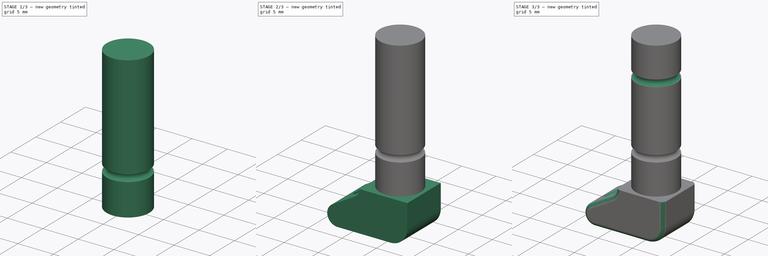
[diagram: build sequence overview — one tinted view per stage of 3, left to right]
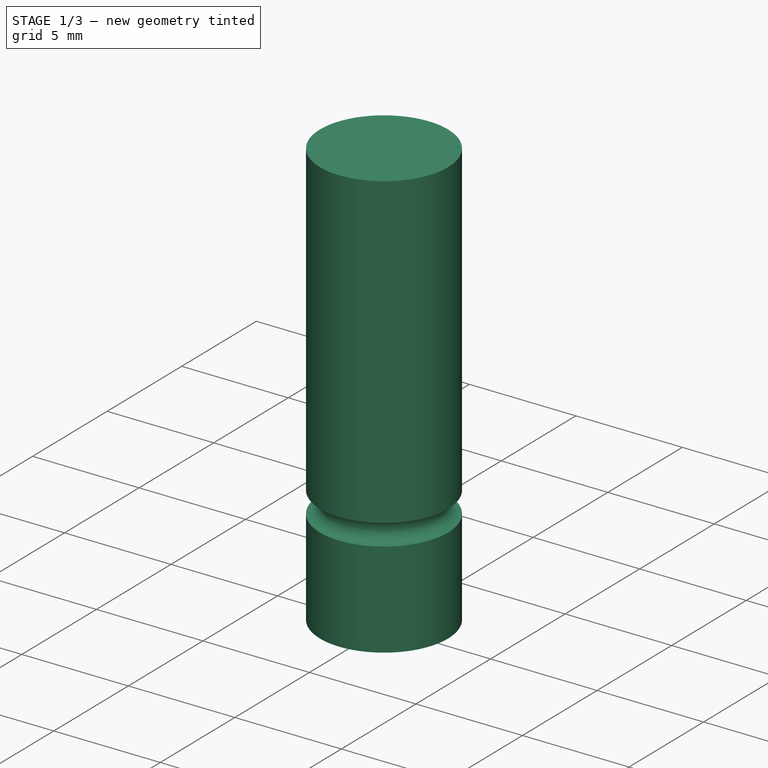
[diagram: stage 1 of 3 — iso view after this stage's code; geometry added in this stage tinted green]
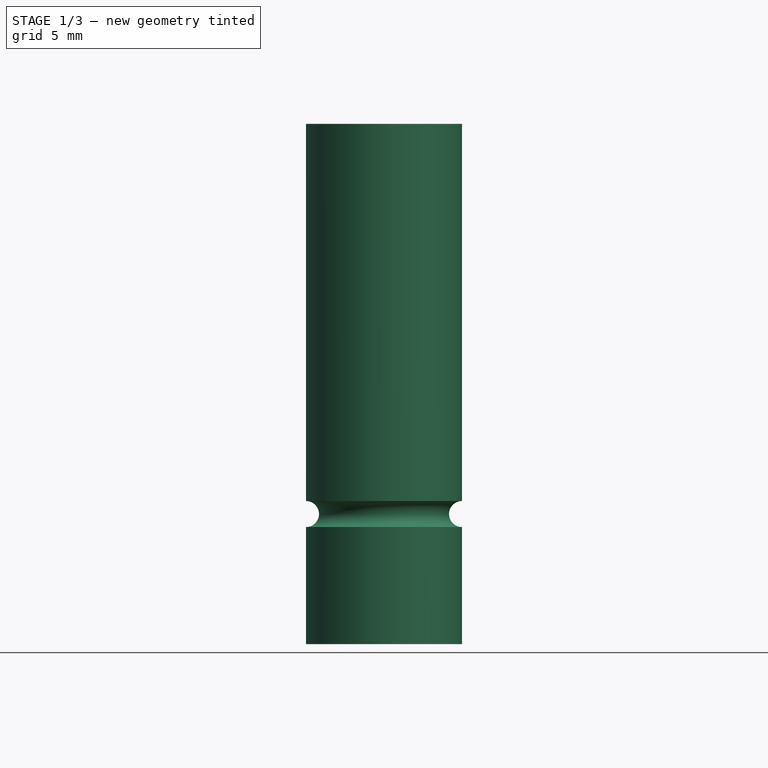
[diagram: stage 1 of 3 — front view after this stage's code; geometry added in this stage tinted green]
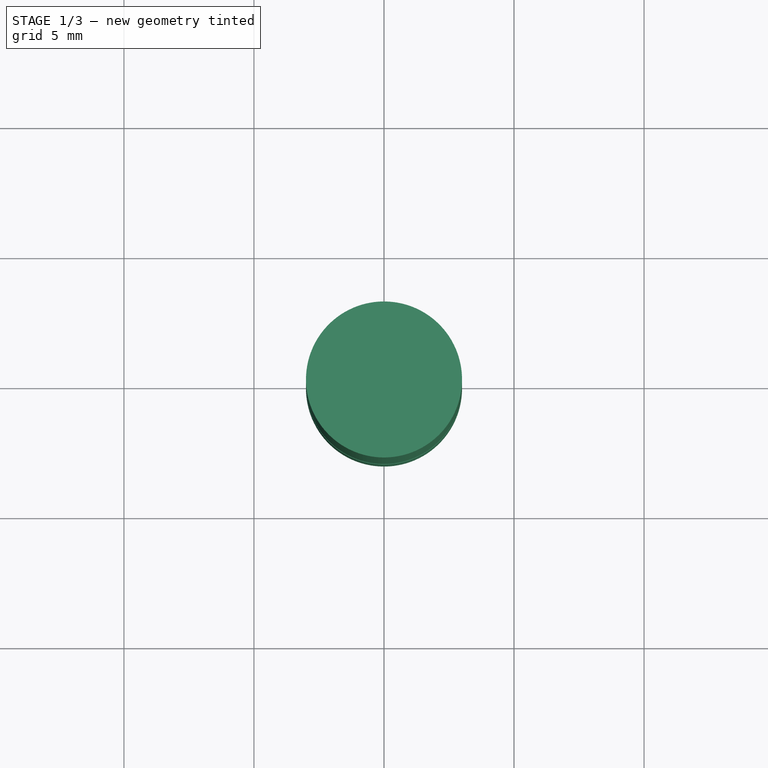
[diagram: stage 1 of 3 — top view after this stage's code; geometry added in this stage tinted green]
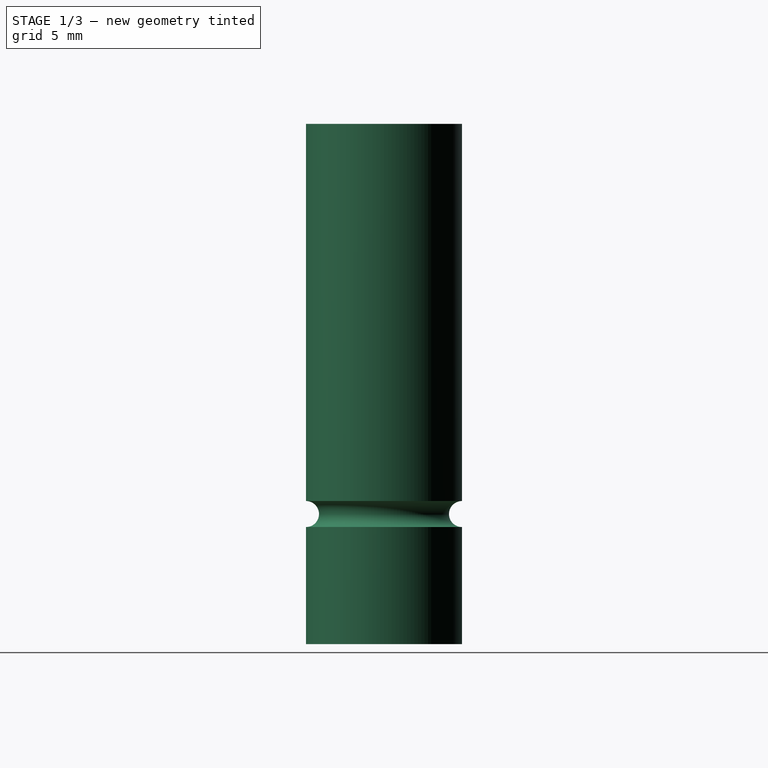
[diagram: stage 1 of 3 — right view after this stage's code; geometry added in this stage tinted green]
FCSTD DOCUMENT  (FreeCAD 0.20R29177 (Git))
Label: SidFishingPoleTip
License: All rights reserved
LicenseURL: http://en.wikipedia.org/wiki/All_rights_reserved
objects: Sketcher::SketchObject×5, PartDesign::Pad×2, PartDesign::Groove×2, Spreadsheet::Sheet×1, PartDesign::Pocket×1, PartDesign::Fillet×1, PartDesign::Body×1
note: 18 computed .brp shape members not serialized (recipe doc carries the construction recipe); baked Part::Feature solids carry a one-line shape summary decoded from their .brp

FEATURE [Sketcher::SketchObject] Sketch
  FullyConstrained = true
  MapMode = 5
  Support = -> [XY_Plane]
  expr: Constraints[1] = Spreadsheet.pole_hole_diameter
  sketch-geometry (1):
    g0: Circle CenterX=0 CenterY=0 CenterZ=0 NormalX=0 NormalY=0 NormalZ=1 AngleXU=0 Radius=3
  constraints (2):
    c: Coincident(g0,g-1)
    c: Diameter(g0) = 6
FEATURE [PartDesign::Pad] Pad
  Direction = (0,0,1)
  Length = 20
  Length2 = 10
  Profile = -> Sketch
  ReferenceAxis = -> Sketch [N_Axis]
  Type = 0
FEATURE [Sketcher::SketchObject] Sketch001
  FullyConstrained = true
  MapMode = 5
  Placement = pos=(0,0,0) rot=(1,0,0;1.5708rad)
  Support = -> [XZ_Plane]
  expr: Constraints[0] = Spreadsheet.pole_hole_diameter / 2
  expr: Constraints[1] = Spreadsheet.o_ring_diameter
  sketch-geometry (1):
    g0: Circle CenterX=3 CenterY=5 CenterZ=0 NormalX=0 NormalY=0 NormalZ=1 AngleXU=0 Radius=0.5
  constraints (3):
    c: DistanceX(g-1,g0) = 3
    c: Diameter(g0) = 1
    c: DistanceY(g-1,g0) = 5
FEATURE [Spreadsheet::Sheet] Spreadsheet
  cells = B4=pole hole diameter; C4(pole_hole_diameter)=6; B5=o ring size; C5(o_ring_diameter)=1
FEATURE [PartDesign::Groove] Groove
  Angle = 360
  Axis = (0,-2e-16,1)
  Base = (0,0,0)
  BaseFeature = -> Pad
  Profile = -> Sketch001
  ReferenceAxis = -> Sketch001 [V_Axis]
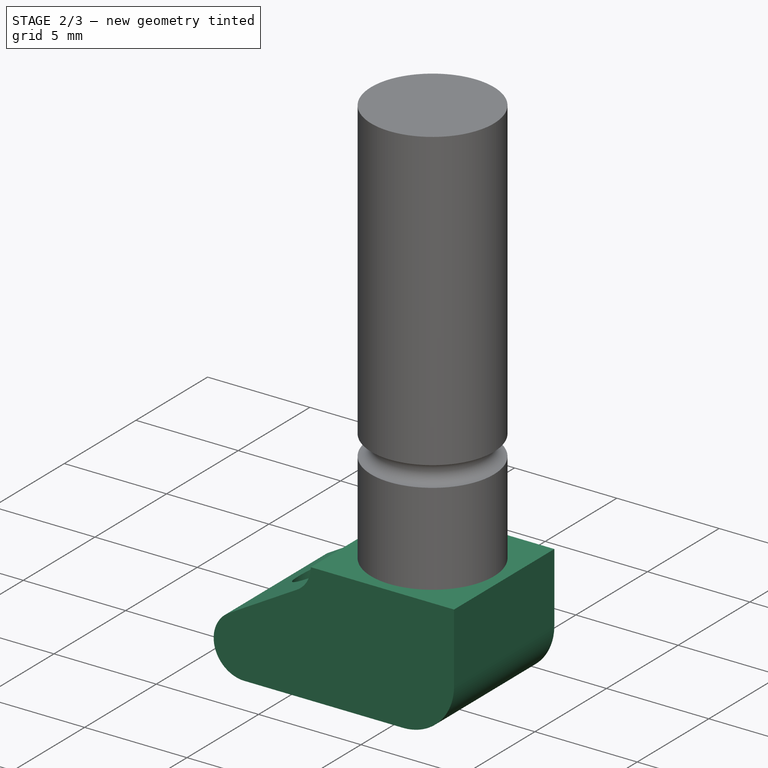
[diagram: stage 2 of 3 — iso view after this stage's code; geometry added in this stage tinted green]
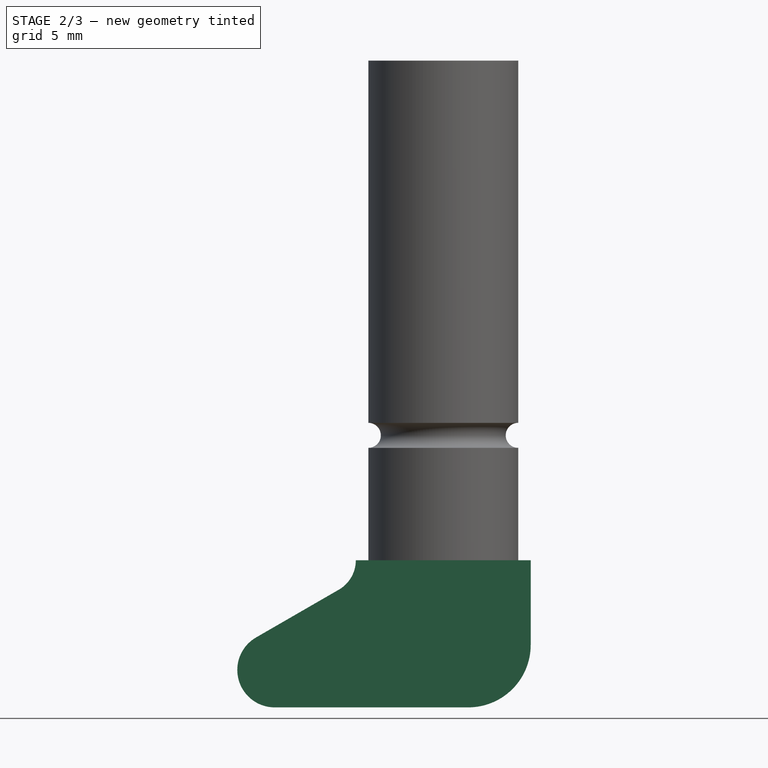
[diagram: stage 2 of 3 — front view after this stage's code; geometry added in this stage tinted green]
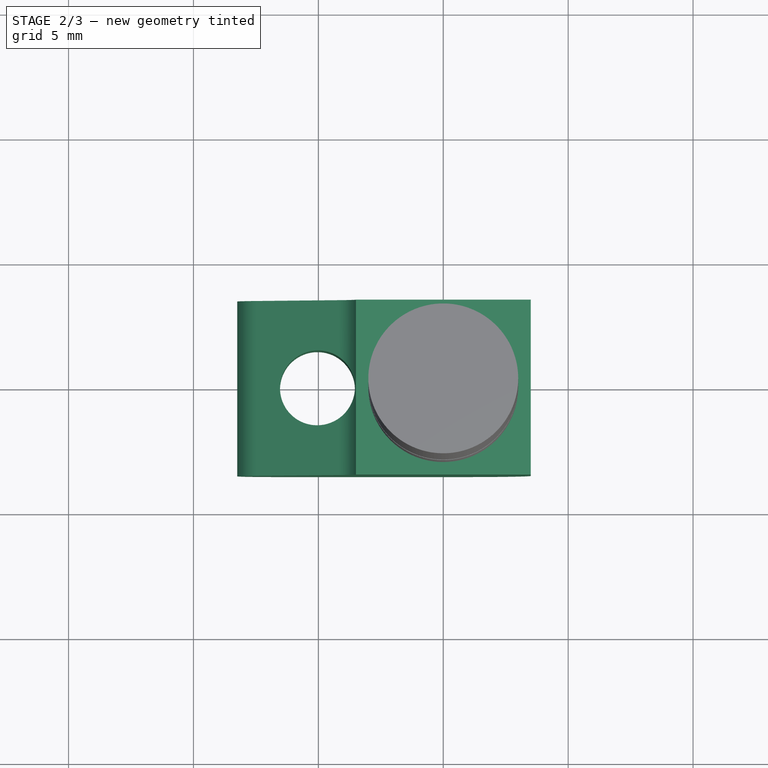
[diagram: stage 2 of 3 — top view after this stage's code; geometry added in this stage tinted green]
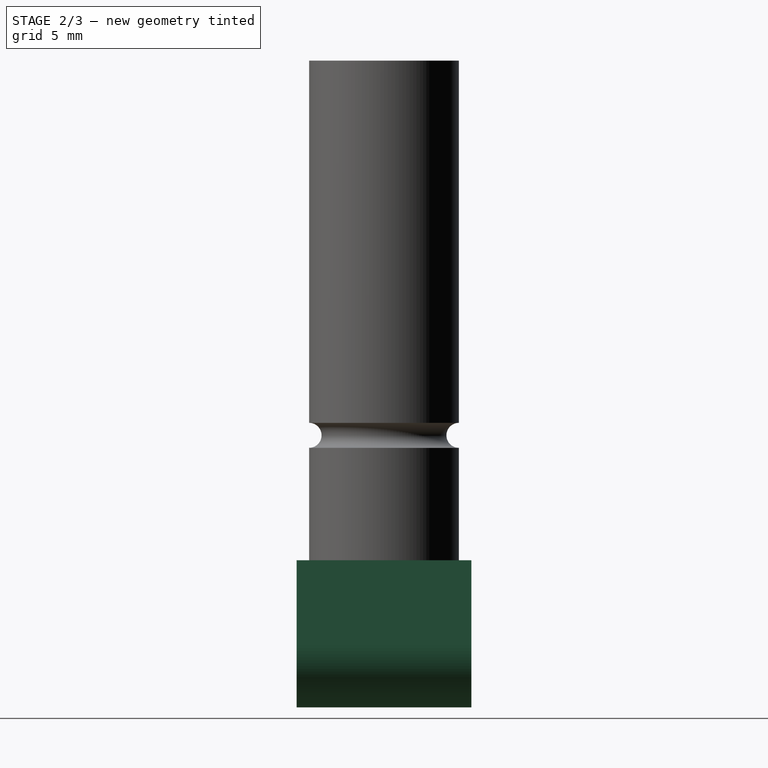
[diagram: stage 2 of 3 — right view after this stage's code; geometry added in this stage tinted green]
FEATURE [Sketcher::SketchObject] Sketch002
  FullyConstrained = false
  MapMode = 5
  Placement = pos=(0,0,0) rot=(1,0,0;1.5708rad)
  Support = -> [XZ_Plane]
  expr: .Constraints.head_size = Spreadsheet.pole_hole_diameter + 1
  expr: Constraints[11] = (Spreadsheet.pole_hole_diameter + 1) / 2
  sketch-geometry (7):
    g0: LineSegment StartX=3.5 StartY=0 StartZ=0 EndX=3.5 EndY=-3.39068 EndZ=0
    g1: ArcOfCircle CenterX=1 CenterY=-3.39068 CenterZ=0 NormalX=0 NormalY=0 NormalZ=1 AngleXU=0 Radius=2.5 StartAngle=4.71239 EndAngle=6.28319
    g2: LineSegment StartX=1 StartY=-5.89068 StartZ=0 EndX=-6.74441 EndY=-5.89068 EndZ=0
    g3: ArcOfCircle CenterX=-6.74441 CenterY=-4.39068 CenterZ=0 NormalX=0 NormalY=0 NormalZ=1 AngleXU=0 Radius=1.5 StartAngle=2.0944 EndAngle=4.71239
    g4: LineSegment StartX=-3.5 StartY=0 StartZ=0 EndX=3.5 EndY=0 EndZ=0
    g5: LineSegment StartX=-7.49441 StartY=-3.09164 StartZ=0 EndX=-4.18023 EndY=-1.1782 EndZ=0
    g6: ArcOfCircle CenterX=-4.86047 CenterY=0 CenterZ=0 NormalX=0 NormalY=0 NormalZ=1 AngleXU=0 Radius=1.36047 StartAngle=5.23599 EndAngle=6.28319
  constraints (17):
    c: PointOnObject(g0,g-1)
    c: Vertical(g0)
    c: Tangent(g0,g1) = 1.5708
    c: Horizontal(g2)
    c: Tangent(g2,g3) = 1.5708
    c: Coincident(g4,g0)
    c: DistanceX(g4,g4) = 7  'head_size'
    c: Tangent(g5,g6) = -1.5708
    c: Coincident(g6,g4)
    c: Horizontal(g4)
    c: Tangent(g3,g5) = 1.5708
    c: DistanceX(g-1,g0) = 3.5
    c: PointOnObject(g6,g-1)
    c: Angle(g5,g-2) = 1.0472
    c: Tangent(g1,g2) = 1.5708
    c: Diameter(g1) = 5
    c: Diameter(g3) = 3
FEATURE [PartDesign::Pad] Pad001
  BaseFeature = -> Groove
  Direction = (0,-1,-2e-16)
  Length = 7
  Length2 = 10
  Midplane = true
  Profile = -> Sketch002
  ReferenceAxis = -> Sketch002 [N_Axis]
  Type = 0
  expr: Length = Spreadsheet.pole_hole_diameter + 1
FEATURE [Sketcher::SketchObject] Sketch003
  FullyConstrained = false
  MapMode = 5
  Support = -> [XY_Plane]
  sketch-geometry (1):
    g0: Circle CenterX=-5.03527 CenterY=0 CenterZ=0 NormalX=0 NormalY=0 NormalZ=1 AngleXU=0 Radius=1.5
  constraints (2):
    c: PointOnObject(g0,g-1)
    c: Diameter(g0) = 3
FEATURE [PartDesign::Pocket] Pocket
  BaseFeature = -> Pad001
  Direction = (0,0,-1)
  Length = 5
  Length2 = 5
  Profile = -> Sketch003
  ReferenceAxis = -> Sketch003 [N_Axis]
  Type = 1
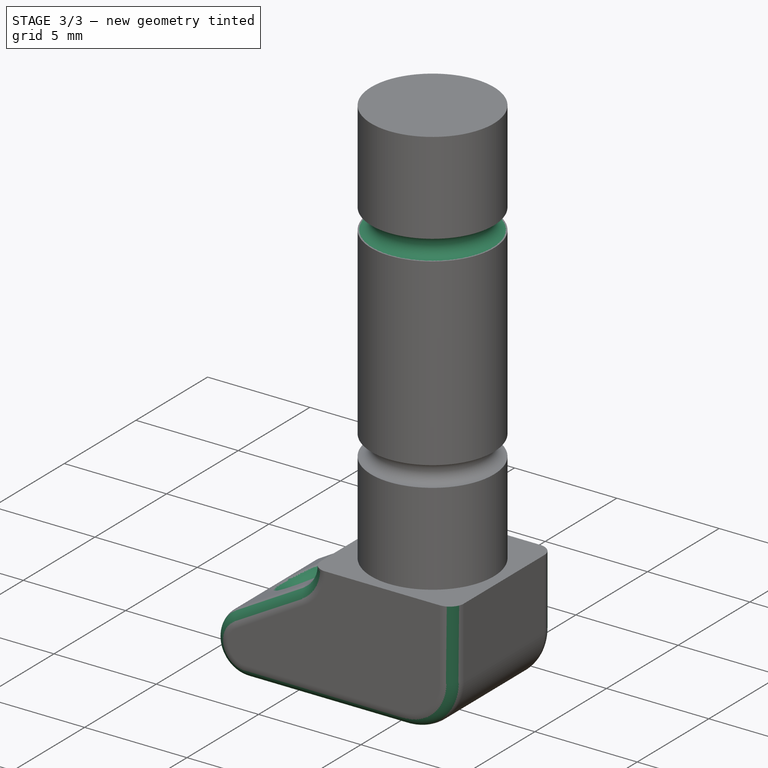
[diagram: stage 3 of 3 — iso view after this stage's code; geometry added in this stage tinted green]
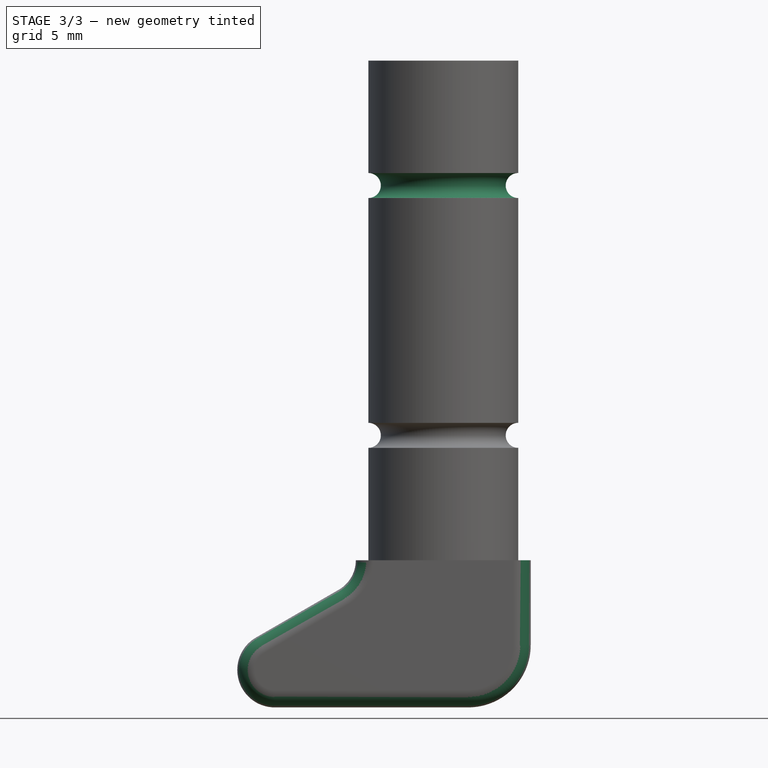
[diagram: stage 3 of 3 — front view after this stage's code; geometry added in this stage tinted green]
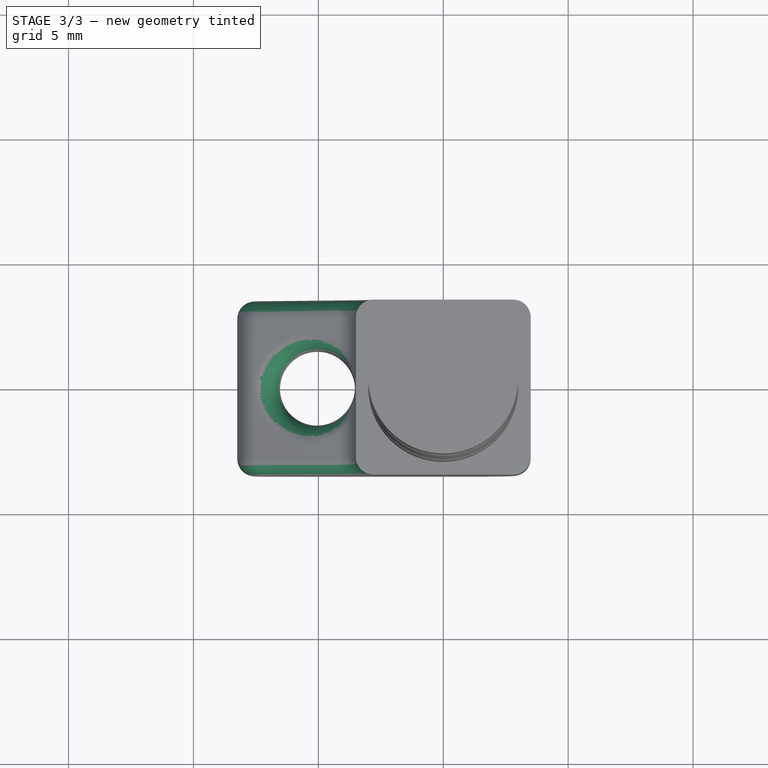
[diagram: stage 3 of 3 — top view after this stage's code; geometry added in this stage tinted green]
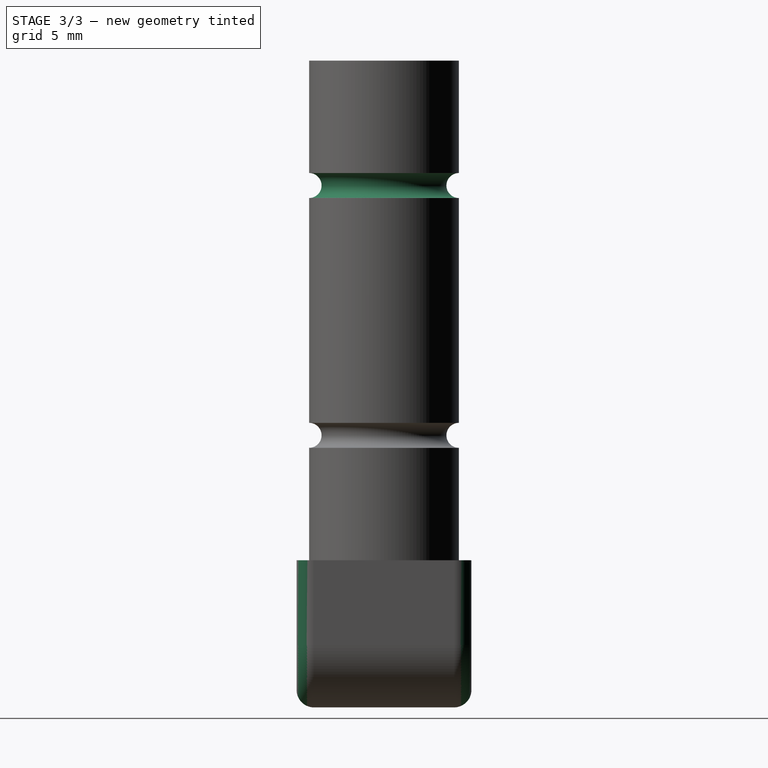
[diagram: stage 3 of 3 — right view after this stage's code; geometry added in this stage tinted green]
FEATURE [Sketcher::SketchObject] Sketch004
  FullyConstrained = true
  MapMode = 5
  Placement = pos=(0,0,0) rot=(1,0,0;1.5708rad)
  expr: Constraints[0] = Spreadsheet.pole_hole_diameter / 2
  expr: Constraints[1] = 1mm
  sketch-geometry (1):
    g0: Circle CenterX=3 CenterY=15 CenterZ=0 NormalX=0 NormalY=0 NormalZ=1 AngleXU=0 Radius=0.5
  constraints (3):
    c: DistanceX(g-1,g0) = 3
    c: Diameter(g0) = 1
    c: DistanceY(g-1,g0) = 15
FEATURE [PartDesign::Groove] Groove001
  Angle = 360
  Axis = (0,-2e-16,1)
  Base = (0,0,0)
  BaseFeature = -> Pocket
  Profile = -> Sketch004
  ReferenceAxis = -> Sketch004 [V_Axis]
FEATURE [PartDesign::Fillet] Fillet
  Base = -> Groove001 [Edge18,Edge19,Edge17,Edge16,Edge11,Edge4,Edge29,Edge22,Edge21,Edge27,Edge15,Edge14,Edge13,Edge12,Edge10,Edge3]
  BaseFeature = -> Groove001
  Radius = 0.7
  SupportTransform = false
  UseAllEdges = false
FEATURE [PartDesign::Body] Body
  Group = -> [Sketch,Pad,Sketch001,Groove,Sketch002,Pad001,Sketch003,Pocket,Sketch004,Groove001,Fillet]
  Origin = -> Origin
  Tip = -> Fillet
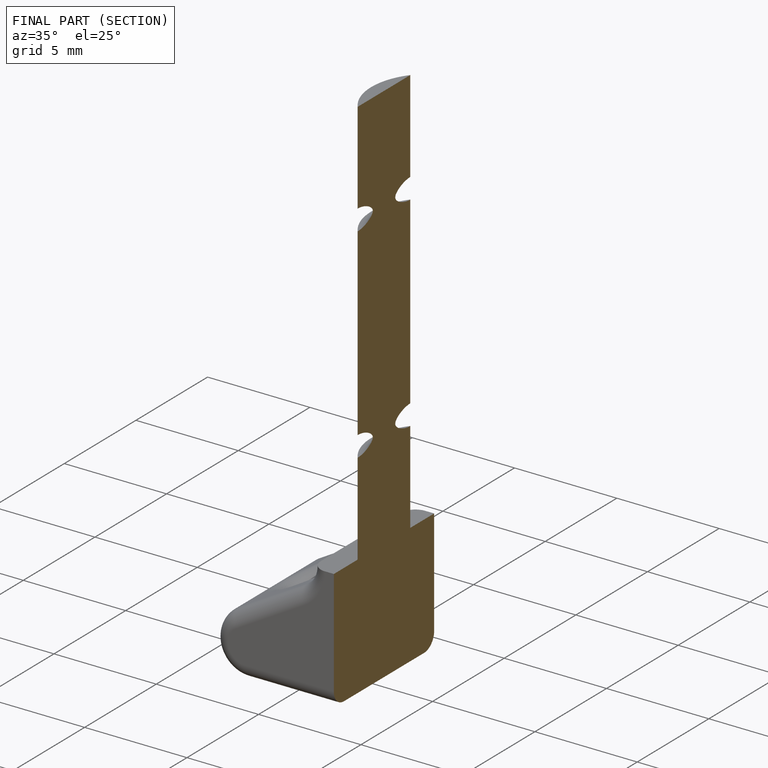
[diagram: finished part — half-section view (interior)]
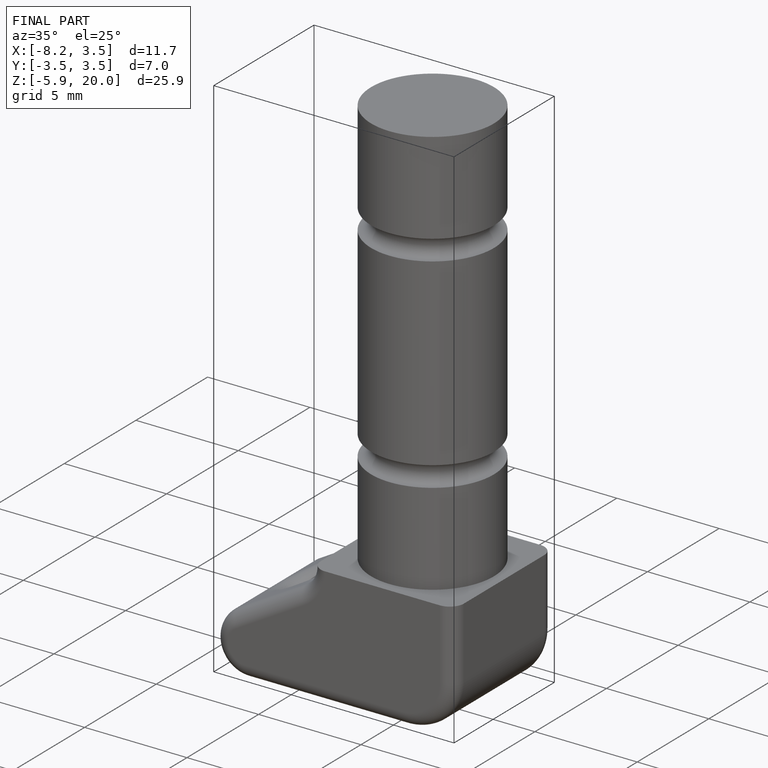
[diagram: finished part — iso view with bounding-box wireframe]
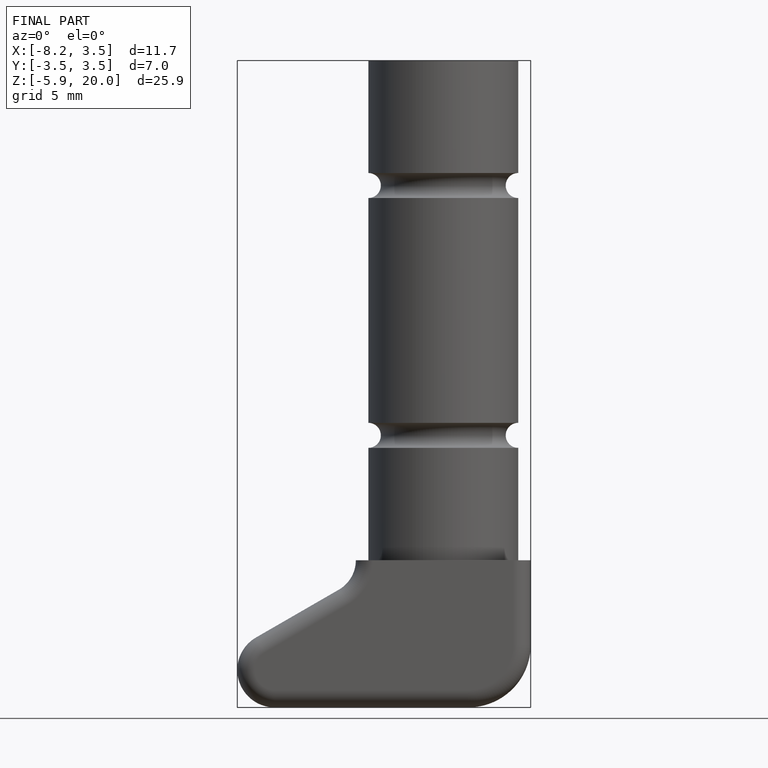
[diagram: finished part — front view with bounding-box wireframe]
